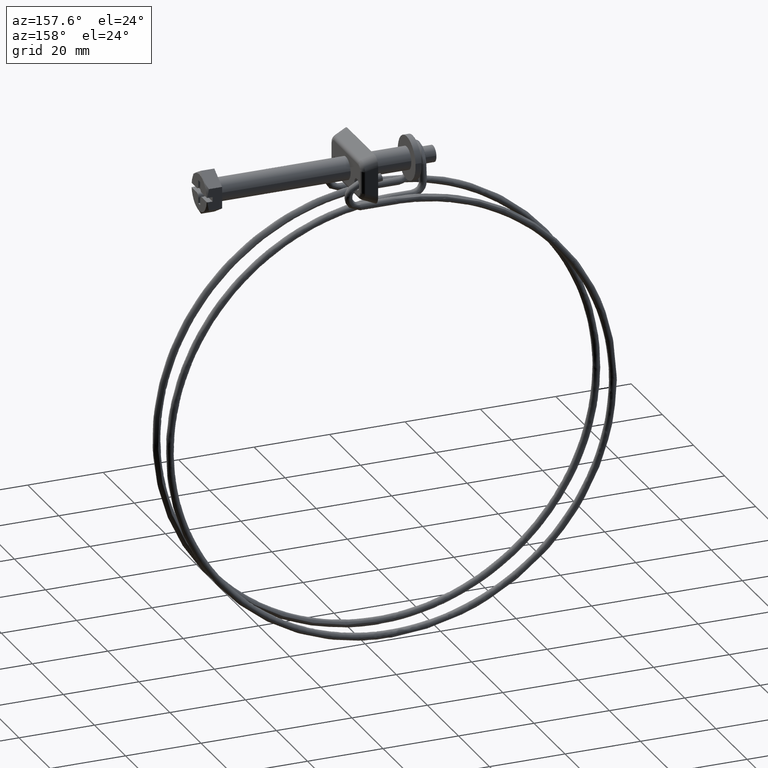
[diagram: clean part render]
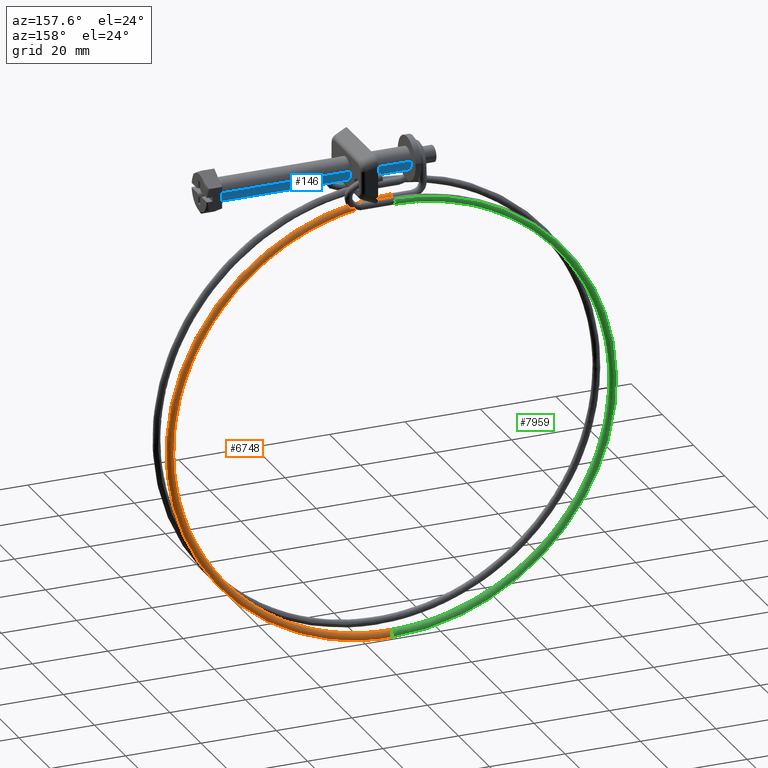
[diagram: same view with three faces highlighted in distinct colors, each labeled with its STEP entity id]
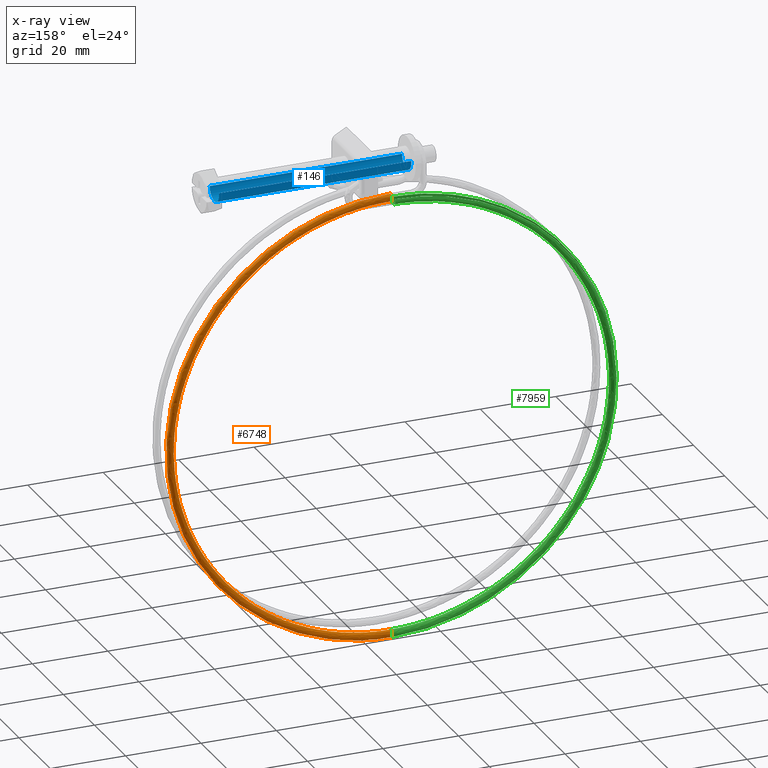
[diagram: x-ray of the same camera — body ghosted, the three highlighted faces saturated]
A machine part, auxiliary view with three faces highlighted in distinct colors.
The next image is the same camera in x-ray (body ghosted, the three faces saturated) — at least one of them is partly hidden behind the body in this view.
Their STEP definitions:

[orange] entity #6748 — the highlighted face is a freeform B-spline surface patch.
#4836=CARTESIAN_POINT('',(-44.950003640792310,5.133887822061370,-8.401937985323242));
#4837=VERTEX_POINT('',#4836);
#4843=CARTESIAN_POINT('',(-44.950000115606933,4.300002000001454,-8.850000999999995));
#4844=VERTEX_POINT('',#4843);
#4845=CARTESIAN_POINT('',(-44.950003640792303,5.133887822061370,-8.401937985323242));
#4846=CARTESIAN_POINT('',(-44.950000115606933,4.837321382123930,-8.850000999999995));
#4847=CARTESIAN_POINT('',(-44.950000115606933,4.300002000001454,-8.850000999999995));
#4855=(BOUNDED_CURVE()B_SPLINE_CURVE(2,(#4845,#4846,#4847),.UNSPECIFIED.,.F.,.U.)B_SPLINE_CURVE_WITH_KNOTS((3,3),(0.344612684639878,0.500000000000000),.UNSPECIFIED.)CURVE()GEOMETRIC_REPRESENTATION_ITEM()RATIONAL_B_SPLINE_CURVE((0.862207930027801,0.817952436165572,1.0))REPRESENTATION_ITEM(''));
#4856=EDGE_CURVE('',#4837,#4844,#4855,.T.);
#4858=CARTESIAN_POINT('',(-44.950000013302088,3.306690361367748,-7.965465230629268));
#4859=VERTEX_POINT('',#4858);
#4860=CARTESIAN_POINT('',(-44.950000115606933,4.300002000001454,-8.850000999999995));
#4861=CARTESIAN_POINT('',(-44.950000115606926,3.409510301525121,-8.850000999999997));
#4862=CARTESIAN_POINT('',(-44.950000013302095,3.306690361367748,-7.965465230629268));
#4870=(BOUNDED_CURVE()B_SPLINE_CURVE(2,(#4860,#4861,#4862),.UNSPECIFIED.,.F.,.U.)B_SPLINE_CURVE_WITH_KNOTS((3,3),(0.500000000000000,0.729999999556472),.UNSPECIFIED.)CURVE()GEOMETRIC_REPRESENTATION_ITEM()RATIONAL_B_SPLINE_CURVE((1.0,0.730538239211250,0.956886117317689))REPRESENTATION_ITEM(''));
#4871=EDGE_CURVE('',#4844,#4859,#4870,.T.);
#4873=CARTESIAN_POINT('',(-44.950015850828407,4.300002000001456,-6.850001000004212));
#4874=VERTEX_POINT('',#4873);
#4890=CARTESIAN_POINT('',(-44.950008261711581,5.299375311477211,-7.814603481584999));
#4891=VERTEX_POINT('',#4890);
#4892=CARTESIAN_POINT('',(-44.950015850828407,4.300002000001456,-6.850001000004212));
#4893=CARTESIAN_POINT('',(-44.950015850828393,5.265209365531937,-6.850001000004212));
#4894=CARTESIAN_POINT('',(-44.950008261711588,5.299375311477211,-7.814603481584999));
#4902=(BOUNDED_CURVE()B_SPLINE_CURVE(2,(#4892,#4893,#4894),.UNSPECIFIED.,.F.,.U.)B_SPLINE_CURVE_WITH_KNOTS((3,3),(0.0,0.243786150660203),.UNSPECIFIED.)CURVE()GEOMETRIC_REPRESENTATION_ITEM()RATIONAL_B_SPLINE_CURVE((1.0,0.714386758523967,0.985801938784135))REPRESENTATION_ITEM(''));
#4903=EDGE_CURVE('',#4874,#4891,#4902,.T.);
#4943=CARTESIAN_POINT('',(-44.950008261711581,5.299375311477211,-7.814603481584999));
#4944=CARTESIAN_POINT('',(-44.950008122508265,5.300002000001456,-7.832296693026818));
#4945=CARTESIAN_POINT('',(-44.950007983217667,5.300002000001455,-7.850001000002103));
#4946=CARTESIAN_POINT('',(-44.950005615335598,5.300002000001455,-8.150966839148525));
#4947=CARTESIAN_POINT('',(-44.950003640792303,5.133887822061370,-8.401937985323242));
#4955=(BOUNDED_CURVE()B_SPLINE_CURVE(2,(#4943,#4944,#4945,#4946,#4947),.UNSPECIFIED.,.F.,.U.)B_SPLINE_CURVE_WITH_KNOTS((3,2,3),(0.243786150660203,0.250000000000000,0.344612684639878),.UNSPECIFIED.)CURVE()GEOMETRIC_REPRESENTATION_ITEM()RATIONAL_B_SPLINE_CURVE((0.985801938784135,0.992720022662580,1.0,0.889154345020976,0.862207930027801))REPRESENTATION_ITEM(''));
#4956=EDGE_CURVE('',#4891,#4837,#4955,.T.);
#6616=CARTESIAN_POINT('',(-44.949999999844700,3.306810287594325,-124.734551136604690));
#6617=VERTEX_POINT('',#6616);
#6618=CARTESIAN_POINT('',(-44.950000013302088,3.306690361367748,-7.965465230629268));
#6619=CARTESIAN_POINT('',(13.802533939039542,3.306690361367740,-7.965465217290014));
#6620=CARTESIAN_POINT('',(13.433383309898925,3.306750701237918,-66.716846672353967));
#6621=CARTESIAN_POINT('',(13.068842569344646,3.306810287594331,-124.734551136450350));
#6622=CARTESIAN_POINT('',(-44.949999999844700,3.306810287594324,-124.734551136604760));
#6630=(BOUNDED_CURVE()B_SPLINE_CURVE(2,(#6618,#6619,#6620,#6621,#6622),.UNSPECIFIED.,.F.,.U.)B_SPLINE_CURVE_WITH_KNOTS((3,2,3),(-3.795101889729139,-2.0,-0.220236089797879),.UNSPECIFIED.)CURVE()GEOMETRIC_REPRESENTATION_ITEM()RATIONAL_B_SPLINE_CURVE((0.894438311824392,0.652111192332554,0.956886118190660,0.654715296088394,0.890337197879846))REPRESENTATION_ITEM(''));
#6631=EDGE_CURVE('',#4859,#6617,#6630,.T.);
#6633=CARTESIAN_POINT('',(-44.949999999970331,4.300002000001456,-125.850000999999910));
#6634=VERTEX_POINT('',#6633);
#6646=CARTESIAN_POINT('',(-44.950015850828407,4.300002000001456,-6.850001000004212));
#6647=CARTESIAN_POINT('',(14.925029047983712,4.300002000001455,-6.849985049261478));
#6648=CARTESIAN_POINT('',(14.548825520940150,4.300002000001455,-66.723848065950648));
#6649=CARTESIAN_POINT('',(14.177320056726435,4.300002000001455,-125.850000999940820));
#6650=CARTESIAN_POINT('',(-44.949999999970338,4.300002000001456,-125.850000999999890));
#6658=(BOUNDED_CURVE()B_SPLINE_CURVE(2,(#6646,#6647,#6648,#6649,#6650),.UNSPECIFIED.,.F.,.U.)B_SPLINE_CURVE_WITH_KNOTS((3,2,3),(-3.795102215358689,-2.0,-0.220236089795856),.UNSPECIFIED.)CURVE()GEOMETRIC_REPRESENTATION_ITEM()RATIONAL_B_SPLINE_CURVE((0.934738609680562,0.681492943256156,1.0,0.684214436432653,0.930452622265947))REPRESENTATION_ITEM(''));
#6659=EDGE_CURVE('',#4874,#6634,#6658,.T.);
#6664=CARTESIAN_POINT('',(-53.364273783590662,4.300002000001456,-7.447963711848499));
#6665=CARTESIAN_POINT('',(14.982618413189723,4.300002000001456,2.315526477597801));
#6666=CARTESIAN_POINT('',(14.548825520940150,4.300002000001455,-66.723848065950648));
#6667=CARTESIAN_POINT('',(14.120198950446822,4.300002000001455,-134.940987784738700));
#6668=CARTESIAN_POINT('',(-53.405874864472842,4.300002000001454,-125.246080498353420));
#6669=CARTESIAN_POINT('',(-53.364273783590647,5.300002000001454,-7.447963711848500));
#6670=CARTESIAN_POINT('',(14.982618413189721,5.300002000001452,2.315526477597802));
#6671=CARTESIAN_POINT('',(14.548825520940156,5.300002000001454,-66.723848065950648));
#6672=CARTESIAN_POINT('',(14.120198950446824,5.300002000001457,-134.940987784738750));
#6673=CARTESIAN_POINT('',(-53.405874864472835,5.300002000001453,-125.246080498353380));
#6674=CARTESIAN_POINT('',(-53.222857417479894,5.300002000001456,-8.437913918372052));
#6675=CARTESIAN_POINT('',(13.975347515489041,5.300002000001455,1.161483998982712));
#6676=CARTESIAN_POINT('',(13.548845260084020,5.300002000001455,-66.717564921985087));
#6677=CARTESIAN_POINT('',(13.127422497498136,5.300002000001456,-133.788198090877530));
#6678=CARTESIAN_POINT('',(-53.263759320532131,5.300002000001455,-124.256230422750830));
#6679=CARTESIAN_POINT('',(-53.081441051369133,5.300002000001454,-9.427864124895606));
#6680=CARTESIAN_POINT('',(12.968076617788373,5.300002000001456,0.007441520367636));
#6681=CARTESIAN_POINT('',(12.548864999227872,5.300002000001454,-66.711281778019526));
#6682=CARTESIAN_POINT('',(12.134646044549456,5.300002000001457,-132.635408397016420));
#6683=CARTESIAN_POINT('',(-53.121643776591398,5.300002000001454,-123.266380347148210));
#6684=CARTESIAN_POINT('',(-53.081441051369133,4.300002000001456,-9.427864124895605));
#6685=CARTESIAN_POINT('',(12.968076617788373,4.300002000001456,0.007441520367636));
#6686=CARTESIAN_POINT('',(12.548864999227870,4.300002000001455,-66.711281778019526));
#6687=CARTESIAN_POINT('',(12.134646044549456,4.300002000001455,-132.635408397016390));
#6688=CARTESIAN_POINT('',(-53.121643776591405,4.300002000001454,-123.266380347148230));
#6689=CARTESIAN_POINT('',(-53.081441051369119,3.409510356035144,-9.427864124895605));
#6690=CARTESIAN_POINT('',(12.968076617788375,3.409510356035145,0.007441520367636));
#6691=CARTESIAN_POINT('',(12.548864999227876,3.409510356035144,-66.711281778019512));
#6692=CARTESIAN_POINT('',(12.134646044549457,3.409510356035145,-132.635408397016360));
#6693=CARTESIAN_POINT('',(-53.121643776591398,3.409510356035144,-123.266380347148230));
#6694=CARTESIAN_POINT('',(-53.206528876843187,3.306690368539810,-8.552217818409103));
#6695=CARTESIAN_POINT('',(13.859043694102578,3.306690368539810,1.028233300871977));
#6696=CARTESIAN_POINT('',(13.433383246921434,3.306690368539810,-66.716839443213516));
#6697=CARTESIAN_POINT('',(13.012792266917662,3.306690368539811,-133.655092044671900));
#6698=CARTESIAN_POINT('',(-53.247350049822067,3.306690368539810,-124.141938084259650));
#6706=(BOUNDED_SURFACE()B_SPLINE_SURFACE(2,2,((#6664,#6669,#6674,#6679,#6684,#6689,#6694),(#6665,#6670,#6675,#6680,#6685,#6690,#6695),(#6666,#6671,#6676,#6681,#6686,#6691,#6696),(#6667,#6672,#6677,#6682,#6687,#6692,#6697),(#6668,#6673,#6678,#6683,#6688,#6693,#6698)),.UNSPECIFIED.,.F.,.F.,.U.)B_SPLINE_SURFACE_WITH_KNOTS((3,2,3),(3,2,2,3),(0.0,109.077038899990400,217.306394061121490),(0.0,1.656854249492410,3.313708498984820,4.838014337413367),.UNSPECIFIED.)GEOMETRIC_REPRESENTATION_ITEM()RATIONAL_B_SPLINE_SURFACE(((0.990778335221501,0.700586079487842,0.990778335221501,0.700586079487842,0.990778335221501,0.723801472400235,0.948062014255291),(0.649810044634204,0.459485089043979,0.649810044634204,0.459485089043979,0.649810044634204,0.474711093659058,0.621794197449318),(1.0,0.707106781186548,1.0,0.707106781186548,1.0,0.730538251261237,0.956886097073711),(0.652531518682906,0.461409461798639,0.652531518682906,0.461409461798639,0.652531518682906,0.476699234551449,0.624398338130066),(0.985520460533819,0.696868200641553,0.985520460533819,0.696868200641553,0.985520460533819,0.719960393820545,0.943030827066492)))REPRESENTATION_ITEM('')SURFACE());
#6707=ORIENTED_EDGE('',*,*,#4871,.F.);
#6708=ORIENTED_EDGE('',*,*,#4856,.F.);
#6709=ORIENTED_EDGE('',*,*,#4956,.F.);
#6710=ORIENTED_EDGE('',*,*,#4903,.F.);
#6711=ORIENTED_EDGE('',*,*,#6659,.T.);
#6712=CARTESIAN_POINT('',(-44.950000000000060,5.028951109211786,-125.534536542634500));
#6713=VERTEX_POINT('',#6712);
#6714=CARTESIAN_POINT('',(-44.949999999970331,4.300002000001456,-125.850000999999910));
#6715=CARTESIAN_POINT('',(-44.950000000000117,4.561801387800607,-125.850000999999910));
#6716=CARTESIAN_POINT('',(-44.950000000000117,4.821988658764738,-125.742227903609800));
#6717=CARTESIAN_POINT('',(-44.950000000000117,5.014513974616889,-125.549702587757590));
#6718=CARTESIAN_POINT('',(-44.950000000000117,5.021795399816844,-125.542177274286600));
#6719=CARTESIAN_POINT('',(-44.950000000000060,5.028951109211786,-125.534536542634500));
#6720=B_SPLINE_CURVE_WITH_KNOTS('',3,(#6714,#6715,#6716,#6717,#6718,#6719),.UNSPECIFIED.,.F.,.U.,(4,2,4),(0.0,0.125000000000003,0.130000262351247),.UNSPECIFIED.);
#6721=EDGE_CURVE('',#6634,#6713,#6720,.T.);
#6722=ORIENTED_EDGE('',*,*,#6721,.T.);
#6723=CARTESIAN_POINT('',(-44.950000000000117,4.300002000001451,-123.850000999999910));
#6724=VERTEX_POINT('',#6723);
#6725=CARTESIAN_POINT('',(-44.950000000000060,5.028951109211786,-125.534536542634500));
#6726=CARTESIAN_POINT('',(-44.950000000000117,5.200678748662655,-125.351169005261200));
#6727=CARTESIAN_POINT('',(-44.950000000000131,5.300002000001454,-125.101327862820000));
#6728=CARTESIAN_POINT('',(-44.950000000000117,5.300002000001454,-124.588201612200810));
#6729=CARTESIAN_POINT('',(-44.950000000000102,5.192228903611267,-124.328014341236600));
#6730=CARTESIAN_POINT('',(-44.950000000000117,4.821988658764735,-123.957774096390100));
#6731=CARTESIAN_POINT('',(-44.950000000000109,4.561801387800603,-123.850000999999910));
#6732=CARTESIAN_POINT('',(-44.950000000000117,4.300002000001452,-123.850000999999910));
#6733=B_SPLINE_CURVE_WITH_KNOTS('',3,(#6725,#6726,#6727,#6728,#6729,#6730,#6731,#6732),.UNSPECIFIED.,.F.,.U.,(4,2,2,4),(0.130000262351244,0.250000000000007,0.375000000000003,0.500000000000000),.UNSPECIFIED.);
#6734=EDGE_CURVE('',#6713,#6724,#6733,.T.);
#6735=ORIENTED_EDGE('',*,*,#6734,.T.);
#6736=CARTESIAN_POINT('',(-44.950000000000117,4.300002000001451,-123.850000999999910));
#6737=CARTESIAN_POINT('',(-44.949999999977273,4.038184983387813,-123.849998888258200));
#6738=CARTESIAN_POINT('',(-44.949999999946179,3.777973727980551,-123.957769111570900));
#6739=CARTESIAN_POINT('',(-44.949999999889613,3.434978456781302,-124.300715488898500));
#6740=CARTESIAN_POINT('',(-44.949999999864232,3.333351637177259,-124.513111612374000));
#6741=CARTESIAN_POINT('',(-44.949999999844700,3.306810287594325,-124.734551136604690));
#6742=B_SPLINE_CURVE_WITH_KNOTS('',3,(#6736,#6737,#6738,#6739,#6740,#6741),.UNSPECIFIED.,.F.,.U.,(4,2,4),(0.500000000000000,0.624999999999997,0.731573696074721),.UNSPECIFIED.);
#6743=EDGE_CURVE('',#6724,#6617,#6742,.T.);
#6744=ORIENTED_EDGE('',*,*,#6743,.T.);
#6745=ORIENTED_EDGE('',*,*,#6631,.F.);
#6746=EDGE_LOOP('',(#6707,#6708,#6709,#6710,#6711,#6722,#6735,#6744,#6745));
#6747=FACE_OUTER_BOUND('',#6746,.T.);
#6748=ADVANCED_FACE('',(#6747),#6706,.T.);

[blue] entity #146 — the highlighted face is a freeform B-spline surface patch.
#44=CARTESIAN_POINT('',(1.275000000000002,2.979028579091114,0.354102703970289));
#45=CARTESIAN_POINT('',(1.275000000000001,2.989162846345932,0.268844185913943));
#46=CARTESIAN_POINT('',(1.275000000000001,2.994404395265715,0.183145618604578));
#47=CARTESIAN_POINT('',(1.275000000000001,3.177550013870294,-2.811258776661137));
#48=CARTESIAN_POINT('',(1.275000000000001,0.183145618604578,-2.994404395265715));
#49=CARTESIAN_POINT('',(1.275000000000001,-2.811258776661137,-3.177550013870294));
#50=CARTESIAN_POINT('',(1.275000000000001,-2.994404395265715,-0.183145618604578));
#51=CARTESIAN_POINT('',(-52.306875000000026,2.979028579091114,0.354102703970289));
#52=CARTESIAN_POINT('',(-52.306875000000019,2.989162846345932,0.268844185913943));
#53=CARTESIAN_POINT('',(-52.306875000000012,2.994404395265715,0.183145618604578));
#54=CARTESIAN_POINT('',(-52.306875000000019,3.177550013870294,-2.811258776661137));
#55=CARTESIAN_POINT('',(-52.306875000000012,0.183145618604578,-2.994404395265715));
#56=CARTESIAN_POINT('',(-52.306875000000019,-2.811258776661137,-3.177550013870294));
#57=CARTESIAN_POINT('',(-52.306875000000012,-2.994404395265715,-0.183145618604578));
#65=(BOUNDED_SURFACE()B_SPLINE_SURFACE(2,1,((#44,#51),(#45,#52),(#46,#53),(#47,#54),(#48,#55),(#49,#56),(#50,#57)),.UNSPECIFIED.,.F.,.F.,.U.)B_SPLINE_SURFACE_WITH_KNOTS((3,2,2,3),(2,2),(0.0,0.198822509939094,5.169385258416424,10.139948006893750),(0.0,53.581875000000032),.UNSPECIFIED.)GEOMETRIC_REPRESENTATION_ITEM()RATIONAL_B_SPLINE_SURFACE(((0.977505800795127,0.977505800795127),(0.988284271247462,0.988284271247462),(1.0,1.0),(0.707106781186548,0.707106781186548),(1.0,1.0),(0.707106781186548,0.707106781186548),(1.0,1.0)))REPRESENTATION_ITEM('')SURFACE());
#66=CARTESIAN_POINT('',(1.703657E-015,2.979028579069317,0.354102704153667));
#67=VERTEX_POINT('',#66);
#68=CARTESIAN_POINT('',(0.0,0.0,-3.000000000000115));
#69=VERTEX_POINT('',#68);
#70=CARTESIAN_POINT('',(1.703657E-015,2.979028579069316,0.354102704153667));
#71=CARTESIAN_POINT('',(0.0,3.000000000000115,0.177672359141053));
#72=CARTESIAN_POINT('',(0.0,3.000000000000115,0.0));
#73=CARTESIAN_POINT('',(0.0,3.000000000000114,-3.000000000000114));
#74=CARTESIAN_POINT('',(0.0,0.0,-3.000000000000115));
#82=(BOUNDED_CURVE()B_SPLINE_CURVE(2,(#70,#71,#72,#73,#74),.UNSPECIFIED.,.F.,.U.)B_SPLINE_CURVE_WITH_KNOTS((3,2,3),(0.729562473494838,0.750000000000000,1.0),.UNSPECIFIED.)CURVE()GEOMETRIC_REPRESENTATION_ITEM()RATIONAL_B_SPLINE_CURVE((0.956026754147104,0.976055948309271,1.0,0.707106781186547,1.0))REPRESENTATION_ITEM(''));
#83=EDGE_CURVE('',#67,#69,#82,.T.);
#84=ORIENTED_EDGE('',*,*,#83,.T.);
#85=CARTESIAN_POINT('',(1.665335E-015,-2.994404395223613,-0.183145619292947));
#86=VERTEX_POINT('',#85);
#87=CARTESIAN_POINT('',(0.0,0.0,-3.000000000000115));
#88=CARTESIAN_POINT('',(0.0,-2.822118199417238,-3.000000000000115));
#89=CARTESIAN_POINT('',(1.665335E-015,-2.994404395223613,-0.183145619292947));
#97=(BOUNDED_CURVE()B_SPLINE_CURVE(2,(#87,#88,#89),.UNSPECIFIED.,.F.,.U.)B_SPLINE_CURVE_WITH_KNOTS((3,3),(0.0,0.239332962162636),.UNSPECIFIED.)CURVE()GEOMETRIC_REPRESENTATION_ITEM()RATIONAL_B_SPLINE_CURVE((1.0,0.719603993376109,0.976072041503178))REPRESENTATION_ITEM(''));
#98=EDGE_CURVE('',#69,#86,#97,.T.);
#99=ORIENTED_EDGE('',*,*,#98,.T.);
#100=CARTESIAN_POINT('',(-51.0,-2.994404395223613,-0.183145619292948));
#101=VERTEX_POINT('',#100);
#102=CARTESIAN_POINT('',(1.665335E-015,-2.994404395223613,-0.183145619292947));
#103=CARTESIAN_POINT('',(-51.0,-2.994404395223613,-0.183145619292948));
#104=QUASI_UNIFORM_CURVE('',1,(#102,#103),.UNSPECIFIED.,.F.,.U.);
#105=EDGE_CURVE('',#86,#101,#104,.T.);
#106=ORIENTED_EDGE('',*,*,#105,.T.);
#107=CARTESIAN_POINT('',(-51.0,0.0,-3.000000000000115));
#108=VERTEX_POINT('',#107);
#109=CARTESIAN_POINT('',(-51.0,0.0,-3.000000000000115));
#110=CARTESIAN_POINT('',(-51.000000000000007,-2.822118199417254,-3.000000000000115));
#111=CARTESIAN_POINT('',(-51.000000000000007,-2.994404395223613,-0.183145619292948));
#119=(BOUNDED_CURVE()B_SPLINE_CURVE(2,(#109,#110,#111),.UNSPECIFIED.,.F.,.U.)B_SPLINE_CURVE_WITH_KNOTS((3,3),(0.500000000000000,0.739332962162637),.UNSPECIFIED.)CURVE()GEOMETRIC_REPRESENTATION_ITEM()RATIONAL_B_SPLINE_CURVE((1.0,0.719603993376108,0.976072041503180))REPRESENTATION_ITEM(''));
#120=EDGE_CURVE('',#108,#101,#119,.T.);
#121=ORIENTED_EDGE('',*,*,#120,.F.);
#122=CARTESIAN_POINT('',(-51.0,2.979028579069317,0.354102704153667));
#123=VERTEX_POINT('',#122);
#124=CARTESIAN_POINT('',(-51.0,2.979028579069316,0.354102704153667));
#125=CARTESIAN_POINT('',(-51.000000000000007,3.000000000000116,0.177672359141054));
#126=CARTESIAN_POINT('',(-51.0,3.000000000000115,0.0));
#127=CARTESIAN_POINT('',(-50.999999999999993,3.000000000000114,-3.000000000000114));
#128=CARTESIAN_POINT('',(-51.0,0.0,-3.000000000000115));
#136=(BOUNDED_CURVE()B_SPLINE_CURVE(2,(#124,#125,#126,#127,#128),.UNSPECIFIED.,.F.,.U.)B_SPLINE_CURVE_WITH_KNOTS((3,2,3),(0.229562473494838,0.250000000000000,0.500000000000000),.UNSPECIFIED.)CURVE()GEOMETRIC_REPRESENTATION_ITEM()RATIONAL_B_SPLINE_CURVE((0.956026754147104,0.976055948309271,1.0,0.707106781186547,1.0))REPRESENTATION_ITEM(''));
#137=EDGE_CURVE('',#123,#108,#136,.T.);
#138=ORIENTED_EDGE('',*,*,#137,.F.);
#139=CARTESIAN_POINT('',(1.703657E-015,2.979028579069317,0.354102704153667));
#140=CARTESIAN_POINT('',(-51.0,2.979028579069317,0.354102704153667));
#141=QUASI_UNIFORM_CURVE('',1,(#139,#140),.UNSPECIFIED.,.F.,.U.);
#142=EDGE_CURVE('',#67,#123,#141,.T.);
#143=ORIENTED_EDGE('',*,*,#142,.F.);
#144=EDGE_LOOP('',(#84,#99,#106,#121,#138,#143));
#145=FACE_OUTER_BOUND('',#144,.T.);
#146=ADVANCED_FACE('',(#145),#65,.T.);

[green] entity #7959 — the highlighted face is a freeform B-spline surface patch.
#5721=CARTESIAN_POINT('',(-44.950000000000003,5.974420738495329,-6.908508554029114));
#5722=VERTEX_POINT('',#5721);
#5728=CARTESIAN_POINT('',(-44.950000000000003,5.311039469985568,-7.894169442361989));
#5729=VERTEX_POINT('',#5728);
#5730=CARTESIAN_POINT('',(-44.950000000000003,5.311039469985568,-7.894169442361989));
#5731=CARTESIAN_POINT('',(-44.950000000000003,5.309808103871868,-7.868018567054493));
#5732=CARTESIAN_POINT('',(-44.950000000000003,5.309627309886730,-7.841813820258432));
#5733=CARTESIAN_POINT('',(-44.950000000000003,5.319498294589330,-7.553898283383406));
#5734=CARTESIAN_POINT('',(-44.950000000000003,5.436120878696134,-7.297458111935574));
#5735=CARTESIAN_POINT('',(-44.950000000000003,5.727024298627351,-7.025703904462150));
#5736=CARTESIAN_POINT('',(-44.950000000000003,5.846170393658362,-6.954327632220657));
#5737=CARTESIAN_POINT('',(-44.950000000000003,5.974420738495329,-6.908508554029114));
#5738=B_SPLINE_CURVE_WITH_KNOTS('',3,(#5730,#5731,#5732,#5733,#5734,#5735,#5736,#5737),.UNSPECIFIED.,.F.,.U.,(4,2,2,4),(0.737494793451698,0.750000000000000,0.875000000000000,0.940036109681463),.UNSPECIFIED.);
#5739=EDGE_CURVE('',#5729,#5722,#5738,.T.);
#5818=CARTESIAN_POINT('',(-44.950000000000003,6.275653146291321,-8.849410904608176));
#5819=VERTEX_POINT('',#5818);
#5820=CARTESIAN_POINT('',(-44.950000000000003,6.275653146291321,-8.849410904608176));
#5821=CARTESIAN_POINT('',(-44.950000000000003,6.013999542901980,-8.840418809517061));
#5822=CARTESIAN_POINT('',(-44.950000000000003,5.757655727150951,-8.723772742029009));
#5823=CARTESIAN_POINT('',(-44.950000000000003,5.418201444789517,-8.360179636284258));
#5824=CARTESIAN_POINT('',(-44.950000000000003,5.322108133935156,-8.129344415853156));
#5825=CARTESIAN_POINT('',(-44.950000000000003,5.311039469985568,-7.894169442361989));
#5826=B_SPLINE_CURVE_WITH_KNOTS('',3,(#5820,#5821,#5822,#5823,#5824,#5825),.UNSPECIFIED.,.F.,.U.,(4,2,4),(0.500000000000000,0.625000000000000,0.737494793451698),.UNSPECIFIED.);
#5827=EDGE_CURVE('',#5819,#5729,#5826,.T.);
#5829=CARTESIAN_POINT('',(-44.950000000000003,7.062033941973080,-7.190907952424880));
#5830=VERTEX_POINT('',#5829);
#5831=CARTESIAN_POINT('',(-44.950000000000003,7.062033941973080,-7.190907952424880));
#5832=CARTESIAN_POINT('',(-44.950000000000003,7.227361784169248,-7.380065930074488));
#5833=CARTESIAN_POINT('',(-44.950000000000003,7.318044672755153,-7.633171280532671));
#5834=CARTESIAN_POINT('',(-44.950000000000003,7.300419383053800,-8.145994737715949));
#5835=CARTESIAN_POINT('',(-44.950000000000003,7.183772753033830,-8.402326592900360));
#5836=CARTESIAN_POINT('',(-44.950000000000003,6.801033663602860,-8.759631039037789));
#5837=CARTESIAN_POINT('',(-44.950000000000003,6.537298047478171,-8.858403408983129));
#5838=CARTESIAN_POINT('',(-44.950000000000003,6.275653146291321,-8.849410904608176));
#5839=B_SPLINE_CURVE_WITH_KNOTS('',3,(#5831,#5832,#5833,#5834,#5835,#5836,#5837,#5838),.UNSPECIFIED.,.F.,.U.,(4,2,2,4),(0.130000262351251,0.250000000000000,0.375000000000000,0.500000000000000),.UNSPECIFIED.);
#5840=EDGE_CURVE('',#5830,#5819,#5839,.T.);
#5842=CARTESIAN_POINT('',(-44.950000000000003,6.344350819349670,-6.850591095391655));
#5843=VERTEX_POINT('',#5842);
#5853=CARTESIAN_POINT('',(-44.950000000000003,5.974420738495329,-6.908508554029114));
#5854=CARTESIAN_POINT('',(-44.950000000000003,6.092731631913757,-6.866454072036279));
#5855=CARTESIAN_POINT('',(-44.950000000000003,6.218782739017699,-6.846125678241124));
#5856=CARTESIAN_POINT('',(-44.950000000000003,6.344350819349670,-6.850591095391655));
#5857=B_SPLINE_CURVE_WITH_KNOTS('',3,(#5853,#5854,#5855,#5856),.UNSPECIFIED.,.F.,.U.,(4,4),(0.940036109681462,1.0),.UNSPECIFIED.);
#5858=EDGE_CURVE('',#5722,#5843,#5857,.T.);
#6616=CARTESIAN_POINT('',(-44.949999999844700,3.306810287594325,-124.734551136604690));
#6617=VERTEX_POINT('',#6616);
#6633=CARTESIAN_POINT('',(-44.949999999970331,4.300002000001456,-125.850000999999910));
#6634=VERTEX_POINT('',#6633);
#6635=CARTESIAN_POINT('',(-44.949999999844700,3.306810287594325,-124.734551136604690));
#6636=CARTESIAN_POINT('',(-44.949999999846852,3.302226016640508,-124.772837989488490));
#6637=CARTESIAN_POINT('',(-44.949999999849140,3.299886312455536,-124.811395181184100));
#6638=CARTESIAN_POINT('',(-44.949999999868012,3.299904328780814,-125.111788687840900));
#6639=CARTESIAN_POINT('',(-44.949999999890380,3.407698784944419,-125.371978517475300));
#6640=CARTESIAN_POINT('',(-44.949999999934349,3.777981005018821,-125.742223790501200));
#6641=CARTESIAN_POINT('',(-44.949999999955693,4.038188632960975,-125.849999325437690));
#6642=CARTESIAN_POINT('',(-44.949999999970331,4.300002000001456,-125.850000999999910));
#6643=B_SPLINE_CURVE_WITH_KNOTS('',3,(#6635,#6636,#6637,#6638,#6639,#6640,#6641,#6642),.UNSPECIFIED.,.F.,.U.,(4,2,2,4),(0.731573696074720,0.749999999999993,0.874999999999997,1.0),.UNSPECIFIED.);
#6644=EDGE_CURVE('',#6617,#6634,#6643,.T.);
#6712=CARTESIAN_POINT('',(-44.950000000000060,5.028951109211786,-125.534536542634500));
#6713=VERTEX_POINT('',#6712);
#6723=CARTESIAN_POINT('',(-44.950000000000117,4.300002000001451,-123.850000999999910));
#6724=VERTEX_POINT('',#6723);
#6725=CARTESIAN_POINT('',(-44.950000000000060,5.028951109211786,-125.534536542634500));
#6726=CARTESIAN_POINT('',(-44.950000000000117,5.200678748662655,-125.351169005261200));
#6727=CARTESIAN_POINT('',(-44.950000000000131,5.300002000001454,-125.101327862820000));
#6728=CARTESIAN_POINT('',(-44.950000000000117,5.300002000001454,-124.588201612200810));
#6729=CARTESIAN_POINT('',(-44.950000000000102,5.192228903611267,-124.328014341236600));
#6730=CARTESIAN_POINT('',(-44.950000000000117,4.821988658764735,-123.957774096390100));
#6731=CARTESIAN_POINT('',(-44.950000000000109,4.561801387800603,-123.850000999999910));
#6732=CARTESIAN_POINT('',(-44.950000000000117,4.300002000001452,-123.850000999999910));
#6733=B_SPLINE_CURVE_WITH_KNOTS('',3,(#6725,#6726,#6727,#6728,#6729,#6730,#6731,#6732),.UNSPECIFIED.,.F.,.U.,(4,2,2,4),(0.130000262351244,0.250000000000007,0.375000000000003,0.500000000000000),.UNSPECIFIED.);
#6734=EDGE_CURVE('',#6713,#6724,#6733,.T.);
#6736=CARTESIAN_POINT('',(-44.950000000000117,4.300002000001451,-123.850000999999910));
#6737=CARTESIAN_POINT('',(-44.949999999977273,4.038184983387813,-123.849998888258200));
#6738=CARTESIAN_POINT('',(-44.949999999946179,3.777973727980551,-123.957769111570900));
#6739=CARTESIAN_POINT('',(-44.949999999889613,3.434978456781302,-124.300715488898500));
#6740=CARTESIAN_POINT('',(-44.949999999864232,3.333351637177259,-124.513111612374000));
#6741=CARTESIAN_POINT('',(-44.949999999844700,3.306810287594325,-124.734551136604690));
#6742=B_SPLINE_CURVE_WITH_KNOTS('',3,(#6736,#6737,#6738,#6739,#6740,#6741),.UNSPECIFIED.,.F.,.U.,(4,2,4),(0.500000000000000,0.624999999999997,0.731573696074721),.UNSPECIFIED.);
#6743=EDGE_CURVE('',#6724,#6617,#6742,.T.);
#7619=CARTESIAN_POINT('',(-44.950000000000003,5.028949982885336,-125.534537745304700));
#7620=CARTESIAN_POINT('',(-44.950000000000003,5.200678314368261,-125.351170097699100));
#7621=CARTESIAN_POINT('',(-44.950000000000003,5.300002000001459,-125.101328412287000));
#7622=CARTESIAN_POINT('',(-44.950000000000003,5.300002000001459,-124.588201612200810));
#7623=CARTESIAN_POINT('',(-44.950000000000003,5.192228903611270,-124.328014341236600));
#7624=CARTESIAN_POINT('',(-44.950000000000003,4.821988658764740,-123.957774096390000));
#7625=CARTESIAN_POINT('',(-44.950000000000003,4.561801387800600,-123.850001000000010));
#7626=CARTESIAN_POINT('',(-44.950000000000003,4.038202612202305,-123.850001000000010));
#7627=CARTESIAN_POINT('',(-44.950000000000003,3.778015341238175,-123.957774096390000));
#7628=CARTESIAN_POINT('',(-44.950000000000003,3.407775096391640,-124.328014341236600));
#7629=CARTESIAN_POINT('',(-44.950000000000003,3.300002000001455,-124.588201612200810));
#7630=CARTESIAN_POINT('',(-44.950000000000003,3.300002000001455,-125.111800387798990));
#7631=CARTESIAN_POINT('',(-44.950000000000003,3.407775096391645,-125.371987658763200));
#7632=CARTESIAN_POINT('',(-44.950000000000003,3.778015341238175,-125.742227903609600));
#7633=CARTESIAN_POINT('',(-44.950000000000003,4.038202612202305,-125.850001000000010));
#7634=CARTESIAN_POINT('',(-44.950000000000003,4.300002000001458,-125.850001000000010));
#7635=CARTESIAN_POINT('',(-52.696956129546869,5.028950546031314,-125.534537752213300));
#7636=CARTESIAN_POINT('',(-52.672562869045983,5.200678875707654,-125.351170106284400));
#7637=CARTESIAN_POINT('',(-52.639629491004627,5.300002558915767,-125.101328421851600));
#7638=CARTESIAN_POINT('',(-52.572449478190599,5.300002553984260,-124.588201621765410));
#7639=CARTESIAN_POINT('',(-52.538627426182913,5.192229455118360,-124.328014349791800));
#7640=CARTESIAN_POINT('',(-52.490987265108998,4.821989206807810,-123.957774101385200));
#7641=CARTESIAN_POINT('',(-52.477462516185412,4.561801934868480,-123.850001002497610));
#7642=CARTESIAN_POINT('',(-52.478640187759503,4.038203159399335,-123.850000997449000));
#7643=CARTESIAN_POINT('',(-52.493335356442401,3.778015889537635,-123.957774091340990));
#7644=CARTESIAN_POINT('',(-52.542640996579102,3.407775648341875,-124.328014332626000));
#7645=CARTESIAN_POINT('',(-52.576947852263302,3.300002554478245,-124.588201602580000));
#7646=CARTESIAN_POINT('',(-52.645498885786900,3.300002559512070,-125.111800378125200));
#7647=CARTESIAN_POINT('',(-52.679320937754703,3.407775658377970,-125.371987650152600));
#7648=CARTESIAN_POINT('',(-52.726961098828497,3.778015906690165,-125.742227898507390));
#7649=CARTESIAN_POINT('',(-52.740485847791902,4.038203178624505,-125.850000997342600));
#7650=CARTESIAN_POINT('',(-52.739897012004903,4.300002566359068,-125.850000999840400));
#7651=CARTESIAN_POINT('',(-60.438294215584492,5.055408531062806,-123.994413286190390));
#7652=CARTESIAN_POINT('',(-60.389525535195041,5.227053548839652,-123.815895242500700));
#7653=CARTESIAN_POINT('',(-60.323682865682549,5.326264752506729,-123.572601014671900));
#7654=CARTESIAN_POINT('',(-60.189371973755392,5.326035303230490,-123.072830217295010));
#7655=CARTESIAN_POINT('',(-60.121752606361213,5.218146689670900,-122.819367080369200));
#7656=CARTESIAN_POINT('',(-60.026507127001203,4.847743732729191,-122.458598136430790));
#7657=CARTESIAN_POINT('',(-59.999467520764100,4.587510268800971,-122.353513884336000));
#7658=CARTESIAN_POINT('',(-60.001822002643699,4.063915515466090,-122.353279752229000));
#7659=CARTESIAN_POINT('',(-60.031201592135197,3.803778434967840,-122.458131314443610));
#7660=CARTESIAN_POINT('',(-60.129776811767101,3.433706590552850,-122.818569145792200));
#7661=CARTESIAN_POINT('',(-60.198365432042912,3.326050667155615,-123.071935899329400));
#7662=CARTESIAN_POINT('',(-60.335417362527700,3.326284799068480,-123.581906100734400));
#7663=CARTESIAN_POINT('',(-60.403036729975099,3.434173412634715,-123.835369237553810));
#7664=CARTESIAN_POINT('',(-60.498282209335002,3.804576369574765,-124.196138181492200));
#7665=CARTESIAN_POINT('',(-60.525321815519000,4.064809833501331,-124.301222433693200));
#7666=CARTESIAN_POINT('',(-60.524144574579203,4.326607210167106,-124.301339499693700));
#7667=CARTESIAN_POINT('',(-74.750322939059998,5.157253459811462,-118.066126337641410));
#7668=CARTESIAN_POINT('',(-74.656492152915348,5.328577813965219,-117.906273788414200));
#7669=CARTESIAN_POINT('',(-74.529811066018979,5.427356089197544,-117.688179873078790));
#7670=CARTESIAN_POINT('',(-74.271397336696609,5.426243519517411,-117.239814592291400));
#7671=CARTESIAN_POINT('',(-74.141297888610708,5.317910295368741,-117.012231772979600));
#7672=CARTESIAN_POINT('',(-73.958045888927003,4.946881080762079,-116.687916634201600));
#7673=CARTESIAN_POINT('',(-73.906021772488103,4.686469826132280,-116.593181392994400));
#7674=CARTESIAN_POINT('',(-73.910551788096498,4.162890553982050,-116.592046118003200));
#7675=CARTESIAN_POINT('',(-73.967078025185018,3.902946650025880,-116.685653074572000));
#7676=CARTESIAN_POINT('',(-74.156736434314311,3.533522956983370,-117.008362691849000));
#7677=CARTESIAN_POINT('',(-74.288700721750914,3.426318017190845,-117.235478160445600));
#7678=CARTESIAN_POINT('',(-74.552388200704300,3.427453292376310,-117.692993753085800));
#7679=CARTESIAN_POINT('',(-74.682487648737094,3.535786516518340,-117.920576572504000));
#7680=CARTESIAN_POINT('',(-74.865739648420899,3.906815731126660,-118.244891711281990));
#7681=CARTESIAN_POINT('',(-74.917763764912792,4.167226985758120,-118.339626952382800));
#7682=CARTESIAN_POINT('',(-74.915498757108651,4.429016621834895,-118.340194589931500));
#7683=CARTESIAN_POINT('',(-81.314116818758976,5.232599753593621,-113.680297259725290));
#7684=CARTESIAN_POINT('',(-81.199621158128451,5.403686886562322,-113.534253107978800));
#7685=CARTESIAN_POINT('',(-81.045040392743957,5.502144889102581,-113.334801931097100));
#7686=CARTESIAN_POINT('',(-80.729714774397195,5.500379002808449,-112.924465528087200));
#7687=CARTESIAN_POINT('',(-80.570962803263598,5.391716863745630,-112.716028502716000));
#7688=CARTESIAN_POINT('',(-80.347352199212310,5.020224354965250,-112.418681233992400));
#7689=CARTESIAN_POINT('',(-80.283870523092602,4.759681573965381,-112.331602005599190));
#7690=CARTESIAN_POINT('',(-80.289398209076793,4.236113754509615,-112.329800080816000));
#7691=CARTESIAN_POINT('',(-80.358373532842691,3.976312759103534,-112.415088480397000));
#7692=CARTESIAN_POINT('',(-80.589801465516388,3.607368556790740,-112.709887442470010));
#7693=CARTESIAN_POINT('',(-80.750828980057008,3.500497246566835,-112.917582682450000));
#7694=CARTESIAN_POINT('',(-81.072589815104692,3.502299171353446,-113.336293297766200));
#7695=CARTESIAN_POINT('',(-81.231341786185197,3.610961310416260,-113.544730323244000));
#7696=CARTESIAN_POINT('',(-81.454952390236500,3.982453819203280,-113.842077591967200));
#7697=CARTESIAN_POINT('',(-81.518434066409299,4.242996600206475,-113.929156820360400));
#7698=CARTESIAN_POINT('',(-81.515670223417246,4.504780509934357,-113.930057782752100));
#7699=CARTESIAN_POINT('',(-92.267965781807220,5.420782556431996,-102.726372821107500));
#7700=CARTESIAN_POINT('',(-92.118986740654094,5.591277278531612,-102.614812287536690));
#7701=CARTESIAN_POINT('',(-91.917849910882254,5.688935466267013,-102.461917495806700));
#7702=CARTESIAN_POINT('',(-91.507555686590706,5.685538056797340,-102.146550353135590));
#7703=CARTESIAN_POINT('',(-91.300991382623195,5.576054520727120,-101.985925989743190));
#7704=CARTESIAN_POINT('',(-91.010034562111500,5.203405030512570,-101.755925401599200));
#7705=CARTESIAN_POINT('',(-90.927433708890305,4.942533789596740,-101.687965481774200));
#7706=CARTESIAN_POINT('',(-90.934626203188998,4.418994570889195,-101.684498737410810));
#7707=CARTESIAN_POINT('',(-91.024375260304595,4.159550460023609,-101.749013260484600));
#7708=CARTESIAN_POINT('',(-91.325503803665796,3.791803686704460,-101.974111131915810));
#7709=CARTESIAN_POINT('',(-91.535028990587890,3.685765547358830,-102.133308365055400));
#7710=CARTESIAN_POINT('',(-91.953696566395593,3.689232291718960,-102.455111571862600));
#7711=CARTESIAN_POINT('',(-92.160260870416209,3.798715827789185,-102.615735935148610));
#7712=CARTESIAN_POINT('',(-92.451217690928004,4.171365317997085,-102.845736523292600));
#7713=CARTESIAN_POINT('',(-92.533818544096007,4.432236558909600,-102.913696443117600));
#7714=CARTESIAN_POINT('',(-92.530222296946661,4.694006168263371,-102.915429815299310));
#7715=CARTESIAN_POINT('',(-96.653713055847476,5.533545028626261,-96.162587070462834));
#7716=CARTESIAN_POINT('',(-96.490928957967583,5.703684796036367,-96.071688078779275));
#7717=CARTESIAN_POINT('',(-96.271153900188864,5.800863758891221,-95.946688466198879));
#7718=CARTESIAN_POINT('',(-95.822839998838887,5.796488790039811,-95.688224034434000));
#7719=CARTESIAN_POINT('',(-95.597134533226793,5.686513097701461,-95.556247573534705));
#7720=CARTESIAN_POINT('',(-95.279216367226496,5.313170379185910,-95.366599081096595));
#7721=CARTESIAN_POINT('',(-95.188961353734300,5.052102335012270,-95.310094873340489));
#7722=CARTESIAN_POINT('',(-95.196820336290997,4.528580253007820,-95.305630619466896));
#7723=CARTESIAN_POINT('',(-95.294885937847411,4.269349976580070,-95.357698063368403));
#7724=CARTESIAN_POINT('',(-95.623918383558902,3.902320666518685,-95.541033147375614));
#7725=CARTESIAN_POINT('',(-95.852859100755808,3.796781737985240,-95.671171840498999));
#7726=CARTESIAN_POINT('',(-96.310322265398611,3.801245991918570,-95.934911056638697));
#7727=CARTESIAN_POINT('',(-96.536027731170094,3.911221684256915,-96.066887517484815));
#7728=CARTESIAN_POINT('',(-96.853945897117299,4.284564402775785,-96.256536009869805));
#7729=CARTESIAN_POINT('',(-96.944200910503199,4.545632446946111,-96.313040217625996));
#7730=CARTESIAN_POINT('',(-96.940271419277991,4.807393487948334,-96.315272344615892));
#7731=CARTESIAN_POINT('',(-102.581852967424990,5.779415835959079,-81.850704133221896));
#7732=CARTESIAN_POINT('',(-102.400409612865300,5.948781706898457,-81.804852846642390));
#7733=CARTESIAN_POINT('',(-102.155442664144900,6.044915830972943,-81.740672209180246));
#7734=CARTESIAN_POINT('',(-101.655740425121000,6.038409520365720,-81.606270954971805));
#7735=CARTESIAN_POINT('',(-101.404163290690210,5.927360795312710,-81.536754607755498));
#7736=CARTESIAN_POINT('',(-101.049803501855610,5.552506653085280,-81.435084511274809));
#7737=CARTESIAN_POINT('',(-100.949202935740000,5.291009525013820,-81.403556829365300));
#7738=CARTESIAN_POINT('',(-100.957962760315990,4.767524805616930,-81.396917736852501));
#7739=CARTESIAN_POINT('',(-101.067269209666410,4.508760745623190,-81.421847208779994));
#7740=CARTESIAN_POINT('',(-101.434017261227590,4.143295697988910,-81.514128210644188));
#7741=CARTESIAN_POINT('',(-101.689200490488010,4.038845182967730,-81.580911489812792));
#7742=CARTESIAN_POINT('',(-102.199100734390200,4.045484275420755,-81.718055626707098));
#7743=CARTESIAN_POINT('',(-102.450677868661400,4.156533000473765,-81.787571973976497));
#7744=CARTESIAN_POINT('',(-102.805037657548990,4.531387142697870,-81.889242070510406));
#7745=CARTESIAN_POINT('',(-102.905638223771010,4.792884270772650,-81.920769752419915));
#7746=CARTESIAN_POINT('',(-102.901258311429800,5.054626630471095,-81.924089298623159));
#7747=CARTESIAN_POINT('',(-104.121914647617300,5.912427460696027,-74.108236358580953));
#7748=CARTESIAN_POINT('',(-103.935624283722110,6.081374693225522,-74.086753576801954));
#7749=CARTESIAN_POINT('',(-103.684113380408500,6.176943612938739,-74.055472894660042));
#7750=CARTESIAN_POINT('',(-103.171062284294610,6.169284355441230,-73.988183475054200));
#7751=CARTESIAN_POINT('',(-102.912764613343000,6.057655174565969,-73.952454855212295));
#7752=CARTESIAN_POINT('',(-102.548938590876400,5.681983429403670,-73.898376571783089));
#7753=CARTESIAN_POINT('',(-102.445650619145600,5.420254188875560,-73.880359913122092));
#7754=CARTESIAN_POINT('',(-102.454644450423000,4.896789680741690,-73.872544344233788));
#7755=CARTESIAN_POINT('',(-102.566870870923000,4.638277820007410,-73.882793561017095));
#7756=CARTESIAN_POINT('',(-102.943416091559400,4.273658958345766,-73.925818961002108));
#7757=CARTESIAN_POINT('',(-103.205416189218000,4.169797219374821,-73.958330201040098));
#7758=CARTESIAN_POINT('',(-103.728937715864800,4.177612788249840,-74.026992874054187));
#7759=CARTESIAN_POINT('',(-103.987235386816390,4.289241969128409,-74.062721493896007));
#7760=CARTESIAN_POINT('',(-104.351061409283010,4.664913714287390,-74.116799777378390));
#7761=CARTESIAN_POINT('',(-104.454349381013800,4.926642954812180,-74.134816435986295));
#7762=CARTESIAN_POINT('',(-104.449852465375100,5.188375208879115,-74.138724220457007));
#7763=CARTESIAN_POINT('',(-104.121914647404790,6.178555379809397,-58.617208098500221));
#7764=CARTESIAN_POINT('',(-103.935624283509500,6.346665008796373,-58.644481344260953));
#7765=CARTESIAN_POINT('',(-103.684113380198200,6.441103078689972,-58.679026249016957));
#7766=CARTESIAN_POINT('',(-103.171062284188200,6.431137027612579,-58.746012874862700));
#7767=CARTESIAN_POINT('',(-102.912764613236600,6.318346482077669,-58.777886078924801));
#7768=CARTESIAN_POINT('',(-102.548938590770210,5.941038892962480,-58.819028563644913));
#7769=CARTESIAN_POINT('',(-102.445650619039200,5.678845246401760,-58.828044495861100));
#7770=CARTESIAN_POINT('',(-102.454644450316590,5.155421176563629,-58.817875055999487));
#7771=CARTESIAN_POINT('',(-102.566870870816600,4.897413911149379,-58.798752305586397));
#7772=CARTESIAN_POINT('',(-102.943416091453200,4.534488081827041,-58.743228061017000));
#7773=CARTESIAN_POINT('',(-103.205416189111600,4.431804354462460,-58.707168475818399));
#7774=CARTESIAN_POINT('',(-103.728937715652190,4.441973794337351,-58.638814776028902));
#7775=CARTESIAN_POINT('',(-103.987235386604000,4.554764339868940,-58.606941571966800));
#7776=CARTESIAN_POINT('',(-104.351061409070200,4.932071928987450,-58.565799087193497));
#7777=CARTESIAN_POINT('',(-104.454349380801200,5.194265575551490,-58.556783155030502));
#7778=CARTESIAN_POINT('',(-104.449852465162490,5.455977610470560,-58.561867874934762));
#7779=CARTESIAN_POINT('',(-102.581852967548600,6.311567004547854,-50.874740323790903));
#7780=CARTESIAN_POINT('',(-102.400409612918200,6.479257995123968,-50.926382074342300));
#7781=CARTESIAN_POINT('',(-102.155442664198010,6.573130860662362,-50.993826934443049));
#7782=CARTESIAN_POINT('',(-101.655740425174000,6.562011862691420,-51.127925394891399));
#7783=CARTESIAN_POINT('',(-101.404163290849400,6.448640861330951,-51.193586326301400));
#7784=CARTESIAN_POINT('',(-101.049803502068000,6.070515669280880,-51.282320624126200));
#7785=CARTESIAN_POINT('',(-100.949202935899190,5.808089910263500,-51.304847579564303));
#7786=CARTESIAN_POINT('',(-100.957962760422210,5.284686051688400,-51.293501663274100));
#7787=CARTESIAN_POINT('',(-101.067269209719400,5.026930985530290,-51.259698657769903));
#7788=CARTESIAN_POINT('',(-101.434017261387000,4.664851342183900,-51.154918811241501));
#7789=CARTESIAN_POINT('',(-101.689200490594200,4.562756390869570,-51.084587186965500));
#7790=CARTESIAN_POINT('',(-102.199100734496200,4.574102307166440,-50.947752023242700));
#7791=CARTESIAN_POINT('',(-102.450677868820610,4.687473308523600,-50.882091091806103));
#7792=CARTESIAN_POINT('',(-102.805037657708400,5.065598500573669,-50.793356793981303));
#7793=CARTESIAN_POINT('',(-102.905638223877200,5.328024259587710,-50.770829838516597));
#7794=CARTESIAN_POINT('',(-102.901258311509390,5.589726188878590,-50.776502796661752));
#7795=CARTESIAN_POINT('',(-96.653713055723628,6.557437811877678,-36.562857386685742));
#7796=CARTESIAN_POINT('',(-96.490928957914278,6.724354905985019,-36.659546842360783));
#7797=CARTESIAN_POINT('',(-96.271153900135559,6.817182932730928,-36.787810677530743));
#7798=CARTESIAN_POINT('',(-95.822839998785597,6.803932593010690,-37.045972315535501));
#7799=CARTESIAN_POINT('',(-95.597134533067205,6.689488558942200,-37.174093360681603));
#7800=CARTESIAN_POINT('',(-95.279216367013788,6.309851943180250,-37.350806054357449));
#7801=CARTESIAN_POINT('',(-95.188961353574697,6.046997100265060,-37.398309535695347));
#7802=CARTESIAN_POINT('',(-95.196820336184601,5.523630604297511,-37.384788780872150));
#7803=CARTESIAN_POINT('',(-95.294885937794106,5.266341754580051,-37.323847803287748));
#7804=CARTESIAN_POINT('',(-95.623918383399300,4.905826373654129,-37.128013874775853));
#7805=CARTESIAN_POINT('',(-95.852859100649411,4.804819835852061,-36.994326836438653));
#7806=CARTESIAN_POINT('',(-96.310322265292115,4.818340590668631,-36.730896593576702));
#7807=CARTESIAN_POINT('',(-96.536027731010492,4.932784624740440,-36.602775548457203));
#7808=CARTESIAN_POINT('',(-96.853945896957583,5.312421240502390,-36.426062854781300));
#7809=CARTESIAN_POINT('',(-96.944200910396788,5.575276083420900,-36.378559373469962));
#7810=CARTESIAN_POINT('',(-96.940271419198140,5.836959331401356,-36.385319750881578));
#7811=CARTESIAN_POINT('',(-92.267965781754228,6.670200284067212,-29.999071635923290));
#7812=CARTESIAN_POINT('',(-92.118986740608833,6.836762423487488,-30.116422633503252));
#7813=CARTESIAN_POINT('',(-91.917849910932929,6.929111225364895,-30.272581647896359));
#7814=CARTESIAN_POINT('',(-91.507555686537188,6.914883326253160,-30.587645996807300));
#7815=CARTESIAN_POINT('',(-91.300991382676003,6.799947135919860,-30.744414944260601));
#7816=CARTESIAN_POINT('',(-91.010034562164307,6.419617291856909,-30.961479733748551));
#7817=CARTESIAN_POINT('',(-90.927433708996205,6.156565645677270,-31.020438927075549));
#7818=CARTESIAN_POINT('',(-90.934626203135494,5.633216286416140,-31.005920662689100));
#7819=CARTESIAN_POINT('',(-91.024375260304296,5.376141271133190,-30.932532606038599));
#7820=CARTESIAN_POINT('',(-91.325503803612307,5.016343353471680,-30.694935890182450));
#7821=CARTESIAN_POINT('',(-91.535028990640697,4.915836026481790,-30.532190311775999));
#7822=CARTESIAN_POINT('',(-91.953696566448400,4.930354290878200,-30.210696078193401));
#7823=CARTESIAN_POINT('',(-92.160260870362706,5.045290481214820,-30.053927130687001));
#7824=CARTESIAN_POINT('',(-92.451217690821295,5.425620325277770,-29.836862341199001));
#7825=CARTESIAN_POINT('',(-92.533818543989398,5.688671971454090,-29.777903147818900));
#7826=CARTESIAN_POINT('',(-92.530222296919703,5.950346651081335,-29.785162280012099));
#7827=CARTESIAN_POINT('',(-81.314116818811243,6.858383086918042,-19.045147197405310));
#7828=CARTESIAN_POINT('',(-81.199621158173002,7.024352815462389,-19.196981813105950));
#7829=CARTESIAN_POINT('',(-81.045040392692584,7.115901802522954,-19.399697212552830));
#7830=CARTESIAN_POINT('',(-80.729714774450002,7.100042380248691,-19.809730821802550));
#7831=CARTESIAN_POINT('',(-80.570962803210108,6.984284792894700,-20.014312431553549));
#7832=CARTESIAN_POINT('',(-80.347352199158806,6.602797967397581,-20.298723901514649));
#7833=CARTESIAN_POINT('',(-80.283870522986007,6.339417861315270,-20.376802403516201));
#7834=CARTESIAN_POINT('',(-80.289398209129502,5.816097102795720,-20.360619319549599));
#7835=CARTESIAN_POINT('',(-80.358373532842293,5.559378972053260,-20.266457386285751));
#7836=CARTESIAN_POINT('',(-80.589801465569195,5.200778483378761,-19.959159579468800));
#7837=CARTESIAN_POINT('',(-80.750828980003504,5.101104327267140,-19.747915994434400));
#7838=CARTESIAN_POINT('',(-81.072589815051188,5.117287411223790,-19.329514352342851));
#7839=CARTESIAN_POINT('',(-81.231341786237905,5.233044998574459,-19.124932742645051));
#7840=CARTESIAN_POINT('',(-81.454952390342399,5.614531824071580,-18.840521272683851));
#7841=CARTESIAN_POINT('',(-81.518434066515198,5.877911930157210,-18.762442770735451));
#7842=CARTESIAN_POINT('',(-81.515670223443436,6.139572309420305,-18.770534312718770));
#7843=CARTESIAN_POINT('',(-74.750322938929429,6.933729380688475,-14.659318119409960));
#7844=CARTESIAN_POINT('',(-74.656492152800453,7.099461888047765,-14.824961132595350));
#7845=CARTESIAN_POINT('',(-74.529811065807252,7.190690602434631,-15.046319270543700));
#7846=CARTESIAN_POINT('',(-74.271397336536992,7.174177863546361,-15.494381757518950));
#7847=CARTESIAN_POINT('',(-74.141297888504212,7.058091361264941,-15.718109161157299));
#7848=CARTESIAN_POINT('',(-73.958045888820507,6.676141241607390,-16.029488501279349));
#7849=CARTESIAN_POINT('',(-73.906021772328515,6.412629609151680,-16.115223015829098));
#7850=CARTESIAN_POINT('',(-73.910551787936797,5.889320303329919,-16.098373282282950));
#7851=CARTESIAN_POINT('',(-73.967078024972210,5.632745081132570,-15.995892791978150));
#7852=CARTESIAN_POINT('',(-74.156736434154709,5.274624083191100,-15.660684330169950));
#7853=CARTESIAN_POINT('',(-74.288700721644304,5.175283556648110,-15.430020516253251));
#7854=CARTESIAN_POINT('',(-74.552388200544698,5.192133290214200,-14.972813896890800));
#7855=CARTESIAN_POINT('',(-74.682487648577407,5.308219792475690,-14.749086493305580));
#7856=CARTESIAN_POINT('',(-74.865739648314289,5.690169912146530,-14.437707153183499));
#7857=CARTESIAN_POINT('',(-74.917763764699998,5.953681544602240,-14.351972638633759));
#7858=CARTESIAN_POINT('',(-74.915498756922403,6.215336197513120,-14.360397505406841));
#7859=CARTESIAN_POINT('',(-60.438294215714521,7.035574309448116,-8.731031170920192));
#7860=CARTESIAN_POINT('',(-60.389525535309339,7.200986153191156,-8.915339678615132));
#7861=CARTESIAN_POINT('',(-60.323682865893780,7.291781939118540,-9.161898129059042));
#7862=CARTESIAN_POINT('',(-60.189371973914596,7.274386079813350,-9.661366132728000));
#7863=CARTESIAN_POINT('',(-60.121752606467197,7.157854966982710,-9.910973853767590));
#7864=CARTESIAN_POINT('',(-60.026507127107202,6.775278589633641,-10.258806998943900));
#7865=CARTESIAN_POINT('',(-59.999467520923297,6.511589166469711,-10.354890524806320));
#7866=CARTESIAN_POINT('',(-60.001822002802797,5.988295341832590,-10.337139647951000));
#7867=CARTESIAN_POINT('',(-60.031201592347500,5.731913296187290,-10.223414552212841));
#7868=CARTESIAN_POINT('',(-60.129776811926213,5.374440449618301,-9.850477876226570));
#7869=CARTESIAN_POINT('',(-60.198365432148996,5.275550906680010,-9.593562777688289));
#7870=CARTESIAN_POINT('',(-60.335417362686798,5.293301783515390,-9.083901549454659));
#7871=CARTESIAN_POINT('',(-60.403036730134197,5.409832896365960,-8.834293828361961));
#7872=CARTESIAN_POINT('',(-60.498282209441001,5.792409273701749,-8.486460683185610));
#7873=CARTESIAN_POINT('',(-60.525321815731303,6.056098696865671,-8.390377157323210));
#7874=CARTESIAN_POINT('',(-60.524144574764897,6.317745609184236,-8.399252595750864));
#7875=CARTESIAN_POINT('',(-52.696956091899999,7.062330246389323,-7.190940007559243));
#7876=CARTESIAN_POINT('',(-52.672562831547843,7.227658312601363,-7.380097962166480));
#7877=CARTESIAN_POINT('',(-52.639629453619378,7.318340987125213,-7.633203658636945));
#7878=CARTESIAN_POINT('',(-52.572449441224400,7.300714386209140,-8.146027234435501));
#7879=CARTESIAN_POINT('',(-52.538627389448600,7.184067101153070,-8.402358873250689));
#7880=CARTESIAN_POINT('',(-52.490987228646503,6.801327084087870,-8.759663015364179));
#7881=CARTESIAN_POINT('',(-52.477462479761513,6.537591203540810,-8.858435299065580));
#7882=CARTESIAN_POINT('',(-52.478640151333501,6.014301424210460,-8.840450297837119));
#7883=CARTESIAN_POINT('',(-52.493335319896097,5.757969856263450,-8.723803761523818));
#7884=CARTESIAN_POINT('',(-52.542640959798099,5.400666369782180,-8.341064986850221));
#7885=CARTESIAN_POINT('',(-52.576947815329397,5.301894663894760,-8.077329590184290));
#7886=CARTESIAN_POINT('',(-52.645498848425497,5.319880990583271,-7.554040227210620));
#7887=CARTESIAN_POINT('',(-52.679320900200501,5.436528266493720,-7.297708589404400));
#7888=CARTESIAN_POINT('',(-52.726961061040612,5.819268260856280,-6.940404449846480));
#7889=CARTESIAN_POINT('',(-52.740485809844998,6.083004132871330,-6.841632167087010));
#7890=CARTESIAN_POINT('',(-52.739896974078952,6.344649022926665,-6.850624667684871));
#7891=CARTESIAN_POINT('',(-44.950000000000003,7.062032857621545,-7.190906711776353));
#7892=CARTESIAN_POINT('',(-44.950000000000003,7.227361387655084,-7.380064823363636));
#7893=CARTESIAN_POINT('',(-44.950000000000003,7.318044691628711,-7.633170731389734));
#7894=CARTESIAN_POINT('',(-44.950000000000003,7.300419383053800,-8.145994737715949));
#7895=CARTESIAN_POINT('',(-44.950000000000003,7.183772753033830,-8.402326592900360));
#7896=CARTESIAN_POINT('',(-44.950000000000003,6.801033663602860,-8.759631039037789));
#7897=CARTESIAN_POINT('',(-44.950000000000003,6.537298047478171,-8.858403408983129));
#7898=CARTESIAN_POINT('',(-44.950000000000003,6.014008245104471,-8.840418400233219));
#7899=CARTESIAN_POINT('',(-44.950000000000003,5.757676389920070,-8.723771770213249));
#7900=CARTESIAN_POINT('',(-44.950000000000003,5.400371943782620,-8.341032680782289));
#7901=CARTESIAN_POINT('',(-44.950000000000003,5.301599573837280,-8.077297064657580));
#7902=CARTESIAN_POINT('',(-44.950000000000003,5.319584582587190,-7.554007262283891));
#7903=CARTESIAN_POINT('',(-44.950000000000003,5.436231212607160,-7.297675407099500));
#7904=CARTESIAN_POINT('',(-44.950000000000003,5.818970302038131,-6.940370960962010));
#7905=CARTESIAN_POINT('',(-44.950000000000003,6.082705918162820,-6.841598591016711));
#7906=CARTESIAN_POINT('',(-44.950000000000003,6.344350819349670,-6.850591095391655));
#7907=B_SPLINE_SURFACE_WITH_KNOTS('',3,3,((#7619,#7635,#7651,#7667,#7683,#7699,#7715,#7731,#7747,#7763,#7779,#7795,#7811,#7827,#7843,#7859,#7875,#7891),(#7620,#7636,#7652,#7668,#7684,#7700,#7716,#7732,#7748,#7764,#7780,#7796,#7812,#7828,#7844,#7860,#7876,#7892),(#7621,#7637,#7653,#7669,#7685,#7701,#7717,#7733,#7749,#7765,#7781,#7797,#7813,#7829,#7845,#7861,#7877,#7893),(#7622,#7638,#7654,#7670,#7686,#7702,#7718,#7734,#7750,#7766,#7782,#7798,#7814,#7830,#7846,#7862,#7878,#7894),(#7623,#7639,#7655,#7671,#7687,#7703,#7719,#7735,#7751,#7767,#7783,#7799,#7815,#7831,#7847,#7863,#7879,#7895),(#7624,#7640,#7656,#7672,#7688,#7704,#7720,#7736,#7752,#7768,#7784,#7800,#7816,#7832,#7848,#7864,#7880,#7896),(#7625,#7641,#7657,#7673,#7689,#7705,#7721,#7737,#7753,#7769,#7785,#7801,#7817,#7833,#7849,#7865,#7881,#7897),(#7626,#7642,#7658,#7674,#7690,#7706,#7722,#7738,#7754,#7770,#7786,#7802,#7818,#7834,#7850,#7866,#7882,#7898),(#7627,#7643,#7659,#7675,#7691,#7707,#7723,#7739,#7755,#7771,#7787,#7803,#7819,#7835,#7851,#7867,#7883,#7899),(#7628,#7644,#7660,#7676,#7692,#7708,#7724,#7740,#7756,#7772,#7788,#7804,#7820,#7836,#7852,#7868,#7884,#7900),(#7629,#7645,#7661,#7677,#7693,#7709,#7725,#7741,#7757,#7773,#7789,#7805,#7821,#7837,#7853,#7869,#7885,#7901),(#7630,#7646,#7662,#7678,#7694,#7710,#7726,#7742,#7758,#7774,#7790,#7806,#7822,#7838,#7854,#7870,#7886,#7902),(#7631,#7647,#7663,#7679,#7695,#7711,#7727,#7743,#7759,#7775,#7791,#7807,#7823,#7839,#7855,#7871,#7887,#7903),(#7632,#7648,#7664,#7680,#7696,#7712,#7728,#7744,#7760,#7776,#7792,#7808,#7824,#7840,#7856,#7872,#7888,#7904),(#7633,#7649,#7665,#7681,#7697,#7713,#7729,#7745,#7761,#7777,#7793,#7809,#7825,#7841,#7857,#7873,#7889,#7905),(#7634,#7650,#7666,#7682,#7698,#7714,#7730,#7746,#7762,#7778,#7794,#7810,#7826,#7842,#7858,#7874,#7890,#7906)),.UNSPECIFIED.,.F.,.F.,.U.,(4,2,2,2,2,2,2,4),(4,2,2,2,2,2,2,2,4),(0.0,0.753982236861560,1.539380400259018,2.324778563656476,3.110176727053934,3.895574890451392,4.680973053848850,5.466371217246308),(0.0,23.369691036014778,46.739382072029173,70.109073108043901,93.478764144058331,116.848455180072700,140.218146216087490,163.587837252101910,186.957528288116690),.UNSPECIFIED.);
#7908=ORIENTED_EDGE('',*,*,#5840,.T.);
#7909=ORIENTED_EDGE('',*,*,#5827,.T.);
#7910=ORIENTED_EDGE('',*,*,#5739,.T.);
#7911=ORIENTED_EDGE('',*,*,#5858,.T.);
#7912=CARTESIAN_POINT('',(-44.949999999970331,4.300002000001456,-125.850000999999910));
#7913=CARTESIAN_POINT('',(-52.739897012004903,4.300002566359068,-125.850000999840400));
#7914=CARTESIAN_POINT('',(-60.524144574579203,4.326607210167106,-124.301339499693700));
#7915=CARTESIAN_POINT('',(-74.915498757108651,4.429016621834895,-118.340194589931500));
#7916=CARTESIAN_POINT('',(-81.515670223417246,4.504780509934357,-113.930057782752100));
#7917=CARTESIAN_POINT('',(-92.530222296946661,4.694006168263371,-102.915429815299310));
#7918=CARTESIAN_POINT('',(-96.940271419277991,4.807393487948334,-96.315272344615892));
#7919=CARTESIAN_POINT('',(-102.901258311429800,5.054626630471095,-81.924089298623159));
#7920=CARTESIAN_POINT('',(-104.449852465375100,5.188375208879115,-74.138724220457007));
#7921=CARTESIAN_POINT('',(-104.449852465162490,5.455977610470560,-58.561867874934762));
#7922=CARTESIAN_POINT('',(-102.901258311509390,5.589726188878590,-50.776502796661752));
#7923=CARTESIAN_POINT('',(-96.940271419198140,5.836959331401356,-36.385319750881578));
#7924=CARTESIAN_POINT('',(-92.530222296919703,5.950346651081335,-29.785162280012099));
#7925=CARTESIAN_POINT('',(-81.515670223443436,6.139572309420305,-18.770534312718770));
#7926=CARTESIAN_POINT('',(-74.915498756922403,6.215336197513120,-14.360397505406841));
#7927=CARTESIAN_POINT('',(-60.524144574764897,6.317745609184236,-8.399252595750864));
#7928=CARTESIAN_POINT('',(-52.739896974078952,6.344649022926665,-6.850624667684871));
#7929=CARTESIAN_POINT('',(-44.950000000000003,6.344350819349670,-6.850591095391655));
#7930=B_SPLINE_CURVE_WITH_KNOTS('',3,(#7912,#7913,#7914,#7915,#7916,#7917,#7918,#7919,#7920,#7921,#7922,#7923,#7924,#7925,#7926,#7927,#7928,#7929),.UNSPECIFIED.,.F.,.U.,(4,2,2,2,2,2,2,2,4),(0.476332472163982,0.535875424150405,0.595418376136827,0.654961328123250,0.714504280109672,0.774047232096094,0.833590184082517,0.893133136068939,0.952676088055362),.UNSPECIFIED.);
#7931=EDGE_CURVE('',#6634,#5843,#7930,.T.);
#7932=ORIENTED_EDGE('',*,*,#7931,.F.);
#7933=ORIENTED_EDGE('',*,*,#6644,.F.);
#7934=ORIENTED_EDGE('',*,*,#6743,.F.);
#7935=ORIENTED_EDGE('',*,*,#6734,.F.);
#7936=CARTESIAN_POINT('',(-44.950000000000060,5.028951109211786,-125.534536542634500));
#7937=CARTESIAN_POINT('',(-52.696956129546933,5.028951672357763,-125.534536549543200));
#7938=CARTESIAN_POINT('',(-60.438294215584563,5.055409656842994,-123.994412115317600));
#7939=CARTESIAN_POINT('',(-74.750322939060055,5.157254583488965,-118.066125289163790));
#7940=CARTESIAN_POINT('',(-81.314116818759032,5.232600875715530,-113.680296301797400));
#7941=CARTESIAN_POINT('',(-92.267965781807291,5.420783674668693,-102.726372089334010));
#7942=CARTESIAN_POINT('',(-96.653713055847518,5.533546144534869,-96.162586474205028));
#7943=CARTESIAN_POINT('',(-102.581852967425110,5.779416946791454,-81.850703832446754));
#7944=CARTESIAN_POINT('',(-104.121914647617300,5.912428568782253,-74.108236217656540));
#7945=CARTESIAN_POINT('',(-104.121914647404790,6.178556482401159,-58.617208277403037));
#7946=CARTESIAN_POINT('',(-102.581852967548600,6.311568104393467,-50.874740662544447));
#7947=CARTESIAN_POINT('',(-96.653713055723628,6.557438906647056,-36.562858020921936));
#7948=CARTESIAN_POINT('',(-92.267965781754242,6.670201376508501,-29.999072405675200));
#7949=CARTESIAN_POINT('',(-81.314116818811243,6.858384175474121,-19.045148193311579));
#7950=CARTESIAN_POINT('',(-74.750322938929415,6.933730467688958,-14.659319205865909));
#7951=CARTESIAN_POINT('',(-60.438294215714521,7.035575394345914,-8.731032379771360));
#7952=CARTESIAN_POINT('',(-52.696956091899999,7.062331330740870,-7.190941248207188));
#7953=CARTESIAN_POINT('',(-44.950000000000003,7.062033941973080,-7.190907952424880));
#7954=B_SPLINE_CURVE_WITH_KNOTS('',3,(#7936,#7937,#7938,#7939,#7940,#7941,#7942,#7943,#7944,#7945,#7946,#7947,#7948,#7949,#7950,#7951,#7952,#7953),.UNSPECIFIED.,.F.,.U.,(4,2,2,2,2,2,2,2,4),(0.476332472163982,0.535875424150405,0.595418376136827,0.654961328123250,0.714504280109672,0.774047232096094,0.833590184082517,0.893133136068939,0.952676088055362),.UNSPECIFIED.);
#7955=EDGE_CURVE('',#6713,#5830,#7954,.T.);
#7956=ORIENTED_EDGE('',*,*,#7955,.T.);
#7957=EDGE_LOOP('',(#7908,#7909,#7910,#7911,#7932,#7933,#7934,#7935,#7956));
#7958=FACE_OUTER_BOUND('',#7957,.T.);
#7959=ADVANCED_FACE('',(#7958),#7907,.F.);